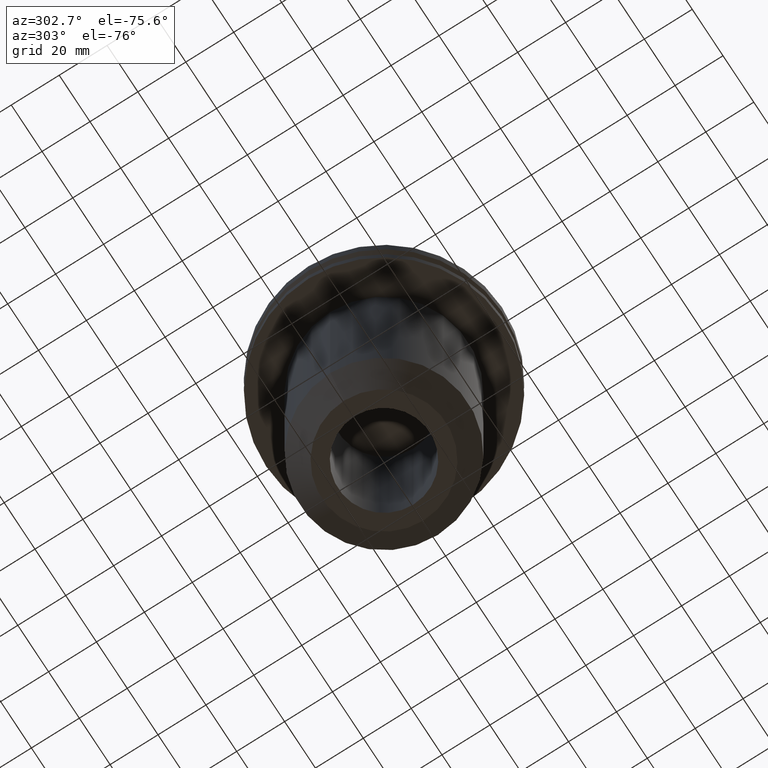
[diagram: clean part render]
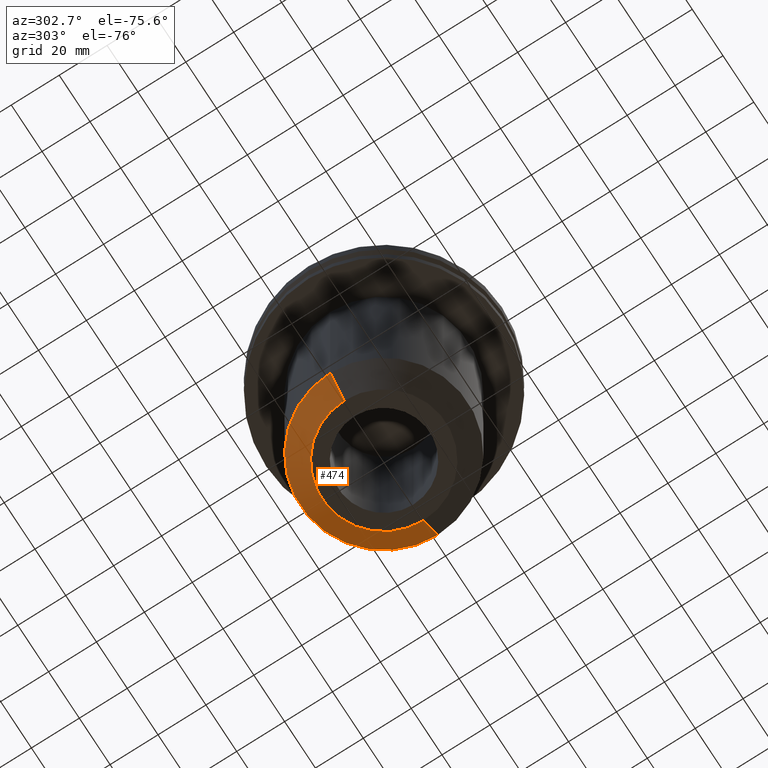
[diagram: same view with one face highlighted and labeled with its STEP entity id]
A machine part, auxiliary view. The second image highlights one B-rep face of the part: STEP entity #474.
In plain terms, the highlighted conical surface has half-angle 45 deg.
Its self-contained STEP definition (entity closure, byte-faithful):
#7 = EDGE_CURVE ( 'NONE', #391, #542, #632, .T. ) ;
#33 = DIRECTION ( 'NONE',  ( 1.000000000000000000, 0.000000000000000000, 0.000000000000000000 ) ) ;
#57 = CARTESIAN_POINT ( 'NONE',  ( -25.82499999999994955, 3.719864652410080914E-15, -114.2999999999999972 ) ) ;
#90 = VECTOR ( 'NONE', #392, 1000.000000000000114 ) ;
#102 = LINE ( 'NONE', #513, #90 ) ;
#139 = EDGE_CURVE ( 'NONE', #679, #274, #346, .T. ) ;
#144 = DIRECTION ( 'NONE',  ( 1.000000000000000000, 0.000000000000000000, 0.000000000000000000 ) ) ;
#158 = DIRECTION ( 'NONE',  ( -0.000000000000000000, -0.000000000000000000, 1.000000000000000000 ) ) ;
#240 = CARTESIAN_POINT ( 'NONE',  ( -25.82499999999994955, 3.162650358798033308E-15, -114.2999999999999972 ) ) ;
#274 = VERTEX_POINT ( 'NONE', #57 ) ;
#285 = EDGE_CURVE ( 'NONE', #274, #542, #590, .T. ) ;
#300 = EDGE_LOOP ( 'NONE', ( #381, #752, #755, #623 ) ) ;
#336 = CARTESIAN_POINT ( 'NONE',  ( 0.000000000000000000, 0.000000000000000000, -114.2999999999999972 ) ) ;
#346 = CIRCLE ( 'NONE', #447, 25.82499999999994955 ) ;
#381 = ORIENTED_EDGE ( 'NONE', *, *, #139, .T. ) ;
#391 = VERTEX_POINT ( 'NONE', #526 ) ;
#392 = DIRECTION ( 'NONE',  ( 0.7071067811865489050, 0.000000000000000000, 0.7071067811865460184 ) ) ;
#447 = AXIS2_PLACEMENT_3D ( 'NONE', #336, #158, #758 ) ;
#474 = ADVANCED_FACE ( 'NONE', ( #545 ), #579, .T. ) ;
#492 = CARTESIAN_POINT ( 'NONE',  ( 0.000000000000000000, 0.000000000000000000, -114.2999999999999972 ) ) ;
#498 = DIRECTION ( 'NONE',  ( -0.000000000000000000, -0.000000000000000000, 1.000000000000000000 ) ) ;
#513 = CARTESIAN_POINT ( 'NONE',  ( 25.82499999999994955, 0.000000000000000000, -114.2999999999999972 ) ) ;
#518 = VECTOR ( 'NONE', #534, 1000.000000000000114 ) ;
#521 = AXIS2_PLACEMENT_3D ( 'NONE', #492, #724, #144 ) ;
#526 = CARTESIAN_POINT ( 'NONE',  ( 34.92499999999998295, 0.000000000000000000, -105.2000000000000028 ) ) ;
#534 = DIRECTION ( 'NONE',  ( -0.7071067811865489050, 8.659560562354951347E-17, 0.7071067811865460184 ) ) ;
#542 = VERTEX_POINT ( 'NONE', #687 ) ;
#545 = FACE_OUTER_BOUND ( 'NONE', #300, .T. ) ;
#579 = CONICAL_SURFACE ( 'NONE', #521, 25.82499999999994955, 0.7853981633974503884 ) ;
#582 = AXIS2_PLACEMENT_3D ( 'NONE', #675, #498, #33 ) ;
#590 = LINE ( 'NONE', #240, #518 ) ;
#623 = ORIENTED_EDGE ( 'NONE', *, *, #638, .F. ) ;
#632 = CIRCLE ( 'NONE', #582, 34.92499999999998295 ) ;
#638 = EDGE_CURVE ( 'NONE', #679, #391, #102, .T. ) ;
#675 = CARTESIAN_POINT ( 'NONE',  ( 0.000000000000000000, 0.000000000000000000, -105.2000000000000028 ) ) ;
#679 = VERTEX_POINT ( 'NONE', #749 ) ;
#687 = CARTESIAN_POINT ( 'NONE',  ( -34.92499999999998295, 4.277078946022130098E-15, -105.2000000000000028 ) ) ;
#724 = DIRECTION ( 'NONE',  ( -0.000000000000000000, -0.000000000000000000, 1.000000000000000000 ) ) ;
#749 = CARTESIAN_POINT ( 'NONE',  ( 25.82499999999994955, 0.000000000000000000, -114.2999999999999972 ) ) ;
#752 = ORIENTED_EDGE ( 'NONE', *, *, #285, .T. ) ;
#755 = ORIENTED_EDGE ( 'NONE', *, *, #7, .F. ) ;
#758 = DIRECTION ( 'NONE',  ( 1.000000000000000000, 0.000000000000000000, 0.000000000000000000 ) ) ;